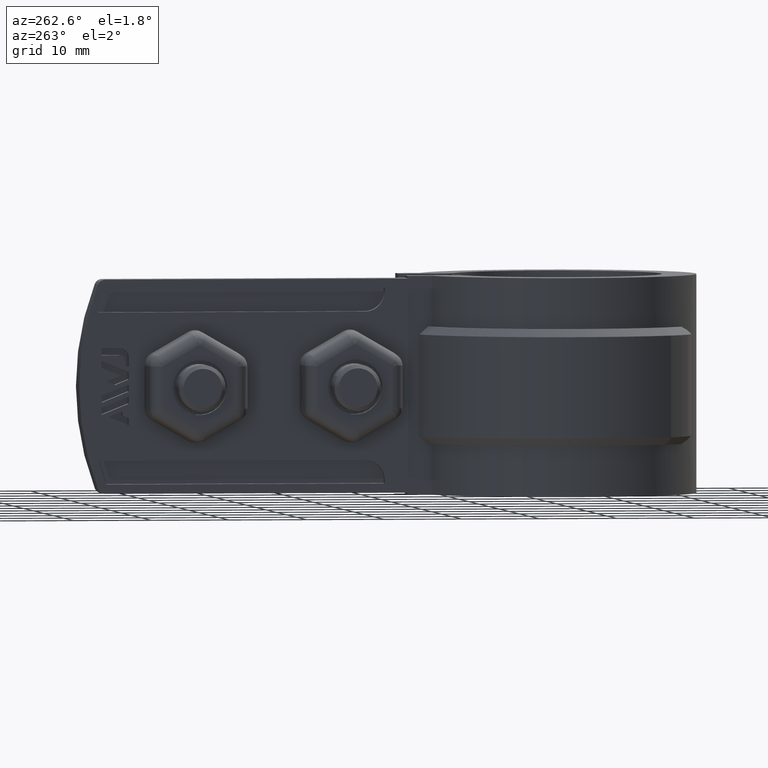
[diagram: clean part render]
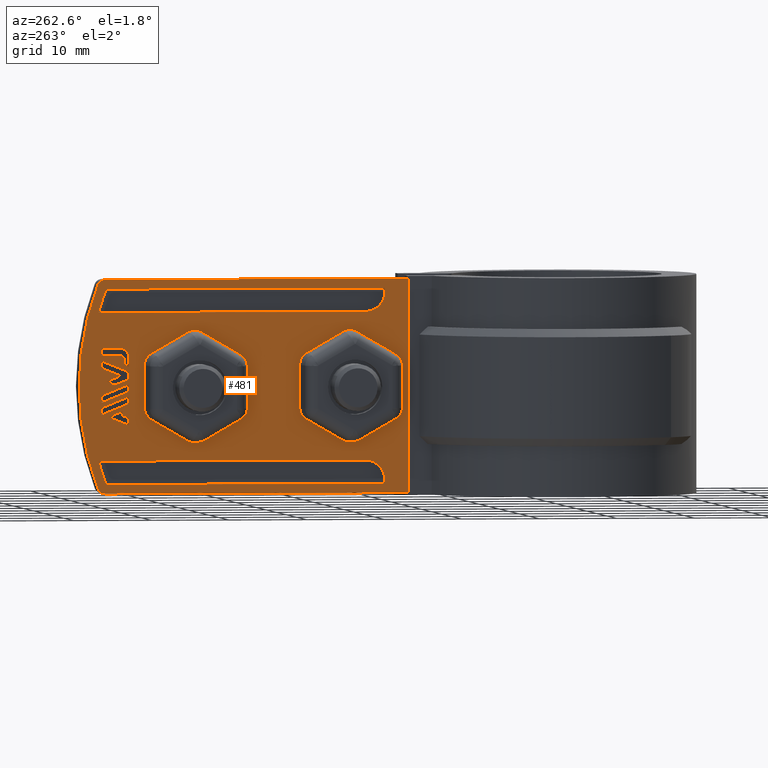
[diagram: same view with one face highlighted and labeled with its STEP entity id]
A machine part, auxiliary view. The second image highlights one B-rep face of the part: STEP entity #481.
In plain terms, the highlighted planar face has unit normal (-1, 0, -0).
Its self-contained STEP definition (entity closure, byte-faithful):
#481 = ADVANCED_FACE( '', ( #952, #953, #954, #955, #956, #957, #958, #959, #960, #961 ), #962, .T. );
#952 = FACE_BOUND( '', #2064, .T. );
#953 = FACE_BOUND( '', #2065, .T. );
#954 = FACE_BOUND( '', #2066, .T. );
#955 = FACE_BOUND( '', #2067, .T. );
#956 = FACE_BOUND( '', #2068, .T. );
#957 = FACE_OUTER_BOUND( '', #2069, .T. );
#958 = FACE_BOUND( '', #2070, .T. );
#959 = FACE_BOUND( '', #2071, .T. );
#960 = FACE_BOUND( '', #2072, .T. );
#961 = FACE_BOUND( '', #2073, .T. );
#962 = PLANE( '', #2074 );
#2064 = EDGE_LOOP( '', ( #4448, #4449, #4450, #4451, #4452 ) );
#2065 = EDGE_LOOP( '', ( #4453, #4454, #4455, #4456 ) );
#2066 = EDGE_LOOP( '', ( #4457, #4458, #4459, #4460, #4461 ) );
#2067 = EDGE_LOOP( '', ( #4462, #4463, #4464, #4465, #4466, #4467, #4468, #4469, #4470, #4471, #4472, #4473 ) );
#2068 = EDGE_LOOP( '', ( #4474, #4475, #4476, #4477, #4478, #4479, #4480, #4481, #4482, #4483, #4484, #4485 ) );
#2069 = EDGE_LOOP( '', ( #4486, #4487, #4488, #4489, #4490, #4491 ) );
#2070 = EDGE_LOOP( '', ( #4492, #4493, #4494, #4495, #4496 ) );
#2071 = EDGE_LOOP( '', ( #4497, #4498, #4499, #4500, #4501, #4502, #4503, #4504, #4505, #4506, #4507, #4508, #4509, #4510, #4511, #4512, #4513, #4514, #4515, #4516, #4517, #4518, #4519, #4520, #4521, #4522, #4523, #4524, #4525, #4526, #4527, #4528, #4529, #4530, #4531, #4532, #4533, #4534, #4535, #4536 ) );
#2072 = EDGE_LOOP( '', ( #4537, #4538, #4539, #4540, #4541, #4542, #4543 ) );
#2073 = EDGE_LOOP( '', ( #4544, #4545, #4546, #4547 ) );
#2074 = AXIS2_PLACEMENT_3D( '', #4548, #4549, #4550 );
#4448 = ORIENTED_EDGE( '', *, *, #6546, .T. );
#4449 = ORIENTED_EDGE( '', *, *, #6547, .T. );
#4450 = ORIENTED_EDGE( '', *, *, #6548, .T. );
#4451 = ORIENTED_EDGE( '', *, *, #6549, .T. );
#4452 = ORIENTED_EDGE( '', *, *, #6550, .T. );
#4453 = ORIENTED_EDGE( '', *, *, #6551, .T. );
#4454 = ORIENTED_EDGE( '', *, *, #6552, .T. );
#4455 = ORIENTED_EDGE( '', *, *, #6553, .T. );
#4456 = ORIENTED_EDGE( '', *, *, #6554, .T. );
#4457 = ORIENTED_EDGE( '', *, *, #6555, .T. );
#4458 = ORIENTED_EDGE( '', *, *, #6556, .F. );
#4459 = ORIENTED_EDGE( '', *, *, #6557, .T. );
#4460 = ORIENTED_EDGE( '', *, *, #6558, .T. );
#4461 = ORIENTED_EDGE( '', *, *, #6559, .T. );
#4462 = ORIENTED_EDGE( '', *, *, #6560, .F. );
#4463 = ORIENTED_EDGE( '', *, *, #6561, .F. );
#4464 = ORIENTED_EDGE( '', *, *, #6562, .F. );
#4465 = ORIENTED_EDGE( '', *, *, #6563, .F. );
#4466 = ORIENTED_EDGE( '', *, *, #6564, .F. );
#4467 = ORIENTED_EDGE( '', *, *, #6565, .F. );
#4468 = ORIENTED_EDGE( '', *, *, #6566, .F. );
#4469 = ORIENTED_EDGE( '', *, *, #6567, .F. );
#4470 = ORIENTED_EDGE( '', *, *, #6568, .F. );
#4471 = ORIENTED_EDGE( '', *, *, #6569, .F. );
#4472 = ORIENTED_EDGE( '', *, *, #6570, .F. );
#4473 = ORIENTED_EDGE( '', *, *, #6571, .F. );
#4474 = ORIENTED_EDGE( '', *, *, #6572, .F. );
#4475 = ORIENTED_EDGE( '', *, *, #6573, .F. );
#4476 = ORIENTED_EDGE( '', *, *, #6574, .F. );
#4477 = ORIENTED_EDGE( '', *, *, #6575, .F. );
#4478 = ORIENTED_EDGE( '', *, *, #6576, .F. );
#4479 = ORIENTED_EDGE( '', *, *, #6577, .F. );
#4480 = ORIENTED_EDGE( '', *, *, #6578, .F. );
#4481 = ORIENTED_EDGE( '', *, *, #6579, .F. );
#4482 = ORIENTED_EDGE( '', *, *, #6580, .F. );
#4483 = ORIENTED_EDGE( '', *, *, #6581, .F. );
#4484 = ORIENTED_EDGE( '', *, *, #6582, .F. );
#4485 = ORIENTED_EDGE( '', *, *, #6583, .F. );
#4486 = ORIENTED_EDGE( '', *, *, #6584, .T. );
#4487 = ORIENTED_EDGE( '', *, *, #6585, .T. );
#4488 = ORIENTED_EDGE( '', *, *, #6586, .T. );
#4489 = ORIENTED_EDGE( '', *, *, #6587, .T. );
#4490 = ORIENTED_EDGE( '', *, *, #6588, .T. );
#4491 = ORIENTED_EDGE( '', *, *, #6589, .T. );
#4492 = ORIENTED_EDGE( '', *, *, #6590, .T. );
#4493 = ORIENTED_EDGE( '', *, *, #6591, .T. );
#4494 = ORIENTED_EDGE( '', *, *, #6592, .T. );
#4495 = ORIENTED_EDGE( '', *, *, #6593, .T. );
#4496 = ORIENTED_EDGE( '', *, *, #6594, .F. );
#4497 = ORIENTED_EDGE( '', *, *, #6595, .T. );
#4498 = ORIENTED_EDGE( '', *, *, #6596, .T. );
#4499 = ORIENTED_EDGE( '', *, *, #6597, .T. );
#4500 = ORIENTED_EDGE( '', *, *, #6598, .T. );
#4501 = ORIENTED_EDGE( '', *, *, #6599, .T. );
#4502 = ORIENTED_EDGE( '', *, *, #6600, .T. );
#4503 = ORIENTED_EDGE( '', *, *, #6601, .T. );
#4504 = ORIENTED_EDGE( '', *, *, #6602, .T. );
#4505 = ORIENTED_EDGE( '', *, *, #6603, .T. );
#4506 = ORIENTED_EDGE( '', *, *, #6604, .T. );
#4507 = ORIENTED_EDGE( '', *, *, #6605, .T. );
#4508 = ORIENTED_EDGE( '', *, *, #6606, .T. );
#4509 = ORIENTED_EDGE( '', *, *, #6607, .T. );
#4510 = ORIENTED_EDGE( '', *, *, #6608, .T. );
#4511 = ORIENTED_EDGE( '', *, *, #6609, .T. );
#4512 = ORIENTED_EDGE( '', *, *, #6610, .T. );
#4513 = ORIENTED_EDGE( '', *, *, #6611, .T. );
#4514 = ORIENTED_EDGE( '', *, *, #6612, .T. );
#4515 = ORIENTED_EDGE( '', *, *, #6613, .T. );
#4516 = ORIENTED_EDGE( '', *, *, #6614, .T. );
#4517 = ORIENTED_EDGE( '', *, *, #6615, .T. );
#4518 = ORIENTED_EDGE( '', *, *, #6616, .T. );
#4519 = ORIENTED_EDGE( '', *, *, #6617, .T. );
#4520 = ORIENTED_EDGE( '', *, *, #6618, .T. );
#4521 = ORIENTED_EDGE( '', *, *, #6619, .T. );
#4522 = ORIENTED_EDGE( '', *, *, #6620, .T. );
#4523 = ORIENTED_EDGE( '', *, *, #6621, .T. );
#4524 = ORIENTED_EDGE( '', *, *, #6622, .T. );
#4525 = ORIENTED_EDGE( '', *, *, #6623, .T. );
#4526 = ORIENTED_EDGE( '', *, *, #6624, .T. );
#4527 = ORIENTED_EDGE( '', *, *, #6625, .T. );
#4528 = ORIENTED_EDGE( '', *, *, #6626, .T. );
#4529 = ORIENTED_EDGE( '', *, *, #6627, .T. );
#4530 = ORIENTED_EDGE( '', *, *, #6628, .T. );
#4531 = ORIENTED_EDGE( '', *, *, #6629, .T. );
#4532 = ORIENTED_EDGE( '', *, *, #6630, .T. );
#4533 = ORIENTED_EDGE( '', *, *, #6631, .T. );
#4534 = ORIENTED_EDGE( '', *, *, #6632, .T. );
#4535 = ORIENTED_EDGE( '', *, *, #6633, .T. );
#4536 = ORIENTED_EDGE( '', *, *, #6634, .T. );
#4537 = ORIENTED_EDGE( '', *, *, #6635, .T. );
#4538 = ORIENTED_EDGE( '', *, *, #6636, .T. );
#4539 = ORIENTED_EDGE( '', *, *, #6637, .T. );
#4540 = ORIENTED_EDGE( '', *, *, #6638, .T. );
#4541 = ORIENTED_EDGE( '', *, *, #6639, .T. );
#4542 = ORIENTED_EDGE( '', *, *, #6640, .T. );
#4543 = ORIENTED_EDGE( '', *, *, #6641, .T. );
#4544 = ORIENTED_EDGE( '', *, *, #6642, .T. );
#4545 = ORIENTED_EDGE( '', *, *, #6643, .T. );
#4546 = ORIENTED_EDGE( '', *, *, #6644, .T. );
#4547 = ORIENTED_EDGE( '', *, *, #6645, .T. );
#4548 = CARTESIAN_POINT( '', ( -6.69999999999978, 25.9942845476423, -12.4999999999974 ) );
#4549 = DIRECTION( '', ( -1.00000000000000, 6.81102793110733E-016, -3.55799675438450E-016 ) );
#4550 = DIRECTION( '', ( 6.81102793110733E-016, 1.00000000000000, 1.97370347594138E-018 ) );
#6546 = EDGE_CURVE( '', #7688, #7689, #7690, .T. );
#6547 = EDGE_CURVE( '', #7689, #7691, #7692, .T. );
#6548 = EDGE_CURVE( '', #7691, #7693, #7694, .T. );
#6549 = EDGE_CURVE( '', #7693, #7695, #7696, .T. );
#6550 = EDGE_CURVE( '', #7695, #7688, #7697, .T. );
#6551 = EDGE_CURVE( '', #7698, #7699, #7700, .T. );
#6552 = EDGE_CURVE( '', #7699, #7701, #7702, .T. );
#6553 = EDGE_CURVE( '', #7701, #7703, #7704, .T. );
#6554 = EDGE_CURVE( '', #7703, #7698, #7705, .T. );
#6555 = EDGE_CURVE( '', #7706, #7707, #7708, .F. );
#6556 = EDGE_CURVE( '', #7709, #7707, #7710, .T. );
#6557 = EDGE_CURVE( '', #7709, #7711, #7712, .T. );
#6558 = EDGE_CURVE( '', #7711, #7713, #7714, .T. );
#6559 = EDGE_CURVE( '', #7713, #7706, #7715, .T. );
#6560 = EDGE_CURVE( '', #7716, #7717, #7718, .F. );
#6561 = EDGE_CURVE( '', #7719, #7716, #7720, .T. );
#6562 = EDGE_CURVE( '', #7721, #7719, #7722, .F. );
#6563 = EDGE_CURVE( '', #7723, #7721, #7724, .T. );
#6564 = EDGE_CURVE( '', #7725, #7723, #7726, .F. );
#6565 = EDGE_CURVE( '', #7727, #7725, #7728, .T. );
#6566 = EDGE_CURVE( '', #7729, #7727, #7730, .F. );
#6567 = EDGE_CURVE( '', #7731, #7729, #7732, .T. );
#6568 = EDGE_CURVE( '', #7733, #7731, #7734, .F. );
#6569 = EDGE_CURVE( '', #7735, #7733, #7736, .T. );
#6570 = EDGE_CURVE( '', #7737, #7735, #7738, .F. );
#6571 = EDGE_CURVE( '', #7717, #7737, #7739, .T. );
#6572 = EDGE_CURVE( '', #7740, #7741, #7742, .F. );
#6573 = EDGE_CURVE( '', #7743, #7740, #7744, .T. );
#6574 = EDGE_CURVE( '', #7745, #7743, #7746, .F. );
#6575 = EDGE_CURVE( '', #7747, #7745, #7748, .T. );
#6576 = EDGE_CURVE( '', #7749, #7747, #7750, .F. );
#6577 = EDGE_CURVE( '', #7751, #7749, #7752, .T. );
#6578 = EDGE_CURVE( '', #7753, #7751, #7754, .F. );
#6579 = EDGE_CURVE( '', #7755, #7753, #7756, .T. );
#6580 = EDGE_CURVE( '', #7757, #7755, #7758, .F. );
#6581 = EDGE_CURVE( '', #7759, #7757, #7760, .T. );
#6582 = EDGE_CURVE( '', #7761, #7759, #7762, .F. );
#6583 = EDGE_CURVE( '', #7741, #7761, #7763, .T. );
#6584 = EDGE_CURVE( '', #7764, #7765, #7766, .T. );
#6585 = EDGE_CURVE( '', #7765, #7767, #7768, .T. );
#6586 = EDGE_CURVE( '', #7767, #7769, #7770, .T. );
#6587 = EDGE_CURVE( '', #7769, #7771, #7772, .T. );
#6588 = EDGE_CURVE( '', #7771, #7773, #7774, .T. );
#6589 = EDGE_CURVE( '', #7773, #7764, #7775, .T. );
#6590 = EDGE_CURVE( '', #7776, #7777, #7778, .F. );
#6591 = EDGE_CURVE( '', #7777, #7779, #7780, .T. );
#6592 = EDGE_CURVE( '', #7779, #7781, #7782, .T. );
#6593 = EDGE_CURVE( '', #7781, #7783, #7784, .T. );
#6594 = EDGE_CURVE( '', #7776, #7783, #7785, .T. );
#6595 = EDGE_CURVE( '', #7786, #7787, #7788, .T. );
#6596 = EDGE_CURVE( '', #7787, #7789, #7790, .T. );
#6597 = EDGE_CURVE( '', #7789, #7791, #7792, .T. );
#6598 = EDGE_CURVE( '', #7791, #7793, #7794, .T. );
#6599 = EDGE_CURVE( '', #7793, #7795, #7796, .T. );
#6600 = EDGE_CURVE( '', #7795, #7797, #7798, .T. );
#6601 = EDGE_CURVE( '', #7797, #7799, #7800, .T. );
#6602 = EDGE_CURVE( '', #7799, #7801, #7802, .T. );
#6603 = EDGE_CURVE( '', #7801, #7803, #7804, .T. );
#6604 = EDGE_CURVE( '', #7803, #7805, #7806, .T. );
#6605 = EDGE_CURVE( '', #7805, #7807, #7808, .T. );
#6606 = EDGE_CURVE( '', #7807, #7809, #7810, .T. );
#6607 = EDGE_CURVE( '', #7809, #7811, #7812, .T. );
#6608 = EDGE_CURVE( '', #7811, #7813, #7814, .T. );
#6609 = EDGE_CURVE( '', #7813, #7815, #7816, .T. );
#6610 = EDGE_CURVE( '', #7815, #7817, #7818, .T. );
#6611 = EDGE_CURVE( '', #7817, #7819, #7820, .T. );
#6612 = EDGE_CURVE( '', #7819, #7821, #7822, .T. );
#6613 = EDGE_CURVE( '', #7821, #7823, #7824, .T. );
#6614 = EDGE_CURVE( '', #7823, #7825, #7826, .T. );
#6615 = EDGE_CURVE( '', #7825, #7827, #7828, .T. );
#6616 = EDGE_CURVE( '', #7827, #7829, #7830, .T. );
#6617 = EDGE_CURVE( '', #7829, #7831, #7832, .T. );
#6618 = EDGE_CURVE( '', #7831, #7833, #7834, .T. );
#6619 = EDGE_CURVE( '', #7833, #7835, #7836, .T. );
#6620 = EDGE_CURVE( '', #7835, #7837, #7838, .T. );
#6621 = EDGE_CURVE( '', #7837, #7839, #7840, .T. );
#6622 = EDGE_CURVE( '', #7839, #7841, #7842, .T. );
#6623 = EDGE_CURVE( '', #7841, #7843, #7844, .T. );
#6624 = EDGE_CURVE( '', #7843, #7845, #7846, .T. );
#6625 = EDGE_CURVE( '', #7845, #7847, #7848, .T. );
#6626 = EDGE_CURVE( '', #7847, #7849, #7850, .T. );
#6627 = EDGE_CURVE( '', #7849, #7851, #7852, .T. );
#6628 = EDGE_CURVE( '', #7851, #7853, #7854, .T. );
#6629 = EDGE_CURVE( '', #7853, #7855, #7856, .T. );
#6630 = EDGE_CURVE( '', #7855, #7857, #7858, .T. );
#6631 = EDGE_CURVE( '', #7857, #7859, #7860, .T. );
#6632 = EDGE_CURVE( '', #7859, #7861, #7862, .T. );
#6633 = EDGE_CURVE( '', #7861, #7863, #7864, .T. );
#6634 = EDGE_CURVE( '', #7863, #7786, #7865, .F. );
#6635 = EDGE_CURVE( '', #7866, #7867, #7868, .T. );
#6636 = EDGE_CURVE( '', #7867, #7869, #7870, .T. );
#6637 = EDGE_CURVE( '', #7869, #7871, #7872, .T. );
#6638 = EDGE_CURVE( '', #7871, #7873, #7874, .T. );
#6639 = EDGE_CURVE( '', #7873, #7875, #7876, .T. );
#6640 = EDGE_CURVE( '', #7875, #7877, #7878, .T. );
#6641 = EDGE_CURVE( '', #7877, #7866, #7879, .T. );
#6642 = EDGE_CURVE( '', #7880, #7881, #7882, .T. );
#6643 = EDGE_CURVE( '', #7881, #7883, #7884, .T. );
#6644 = EDGE_CURVE( '', #7883, #7885, #7886, .T. );
#6645 = EDGE_CURVE( '', #7885, #7880, #7887, .T. );
#7688 = VERTEX_POINT( '', #10714 );
#7689 = VERTEX_POINT( '', #10715 );
#7690 = LINE( '', #10716, #10717 );
#7691 = VERTEX_POINT( '', #10718 );
#7692 = LINE( '', #10719, #10720 );
#7693 = VERTEX_POINT( '', #10721 );
#7694 = LINE( '', #10722, #10723 );
#7695 = VERTEX_POINT( '', #10724 );
#7696 = LINE( '', #10725, #10726 );
#7697 = LINE( '', #10727, #10728 );
#7698 = VERTEX_POINT( '', #10729 );
#7699 = VERTEX_POINT( '', #10730 );
#7700 = LINE( '', #10731, #10732 );
#7701 = VERTEX_POINT( '', #10733 );
#7702 = LINE( '', #10734, #10735 );
#7703 = VERTEX_POINT( '', #10736 );
#7704 = LINE( '', #10737, #10738 );
#7705 = LINE( '', #10739, #10740 );
#7706 = VERTEX_POINT( '', #10741 );
#7707 = VERTEX_POINT( '', #10742 );
#7708 = CIRCLE( '', #10743, 35.2000000000000 );
#7709 = VERTEX_POINT( '', #10744 );
#7710 = LINE( '', #10745, #10746 );
#7711 = VERTEX_POINT( '', #10747 );
#7712 = LINE( '', #10748, #10749 );
#7713 = VERTEX_POINT( '', #10750 );
#7714 = CIRCLE( '', #10751, 2.50000000000000 );
#7715 = LINE( '', #10752, #10753 );
#7716 = VERTEX_POINT( '', #10754 );
#7717 = VERTEX_POINT( '', #10755 );
#7718 = LINE( '', #10756, #10757 );
#7719 = VERTEX_POINT( '', #10758 );
#7720 = CIRCLE( '', #10759, 1.77252045227181 );
#7721 = VERTEX_POINT( '', #10760 );
#7722 = LINE( '', #10761, #10762 );
#7723 = VERTEX_POINT( '', #10763 );
#7724 = CIRCLE( '', #10764, 1.77252045227181 );
#7725 = VERTEX_POINT( '', #10765 );
#7726 = LINE( '', #10766, #10767 );
#7727 = VERTEX_POINT( '', #10768 );
#7728 = CIRCLE( '', #10769, 1.77252045227182 );
#7729 = VERTEX_POINT( '', #10770 );
#7730 = LINE( '', #10771, #10772 );
#7731 = VERTEX_POINT( '', #10773 );
#7732 = CIRCLE( '', #10774, 1.77252045227182 );
#7733 = VERTEX_POINT( '', #10775 );
#7734 = LINE( '', #10776, #10777 );
#7735 = VERTEX_POINT( '', #10778 );
#7736 = CIRCLE( '', #10779, 1.77252045227181 );
#7737 = VERTEX_POINT( '', #10780 );
#7738 = LINE( '', #10781, #10782 );
#7739 = CIRCLE( '', #10783, 1.77252045227182 );
#7740 = VERTEX_POINT( '', #10784 );
#7741 = VERTEX_POINT( '', #10785 );
#7742 = LINE( '', #10786, #10787 );
#7743 = VERTEX_POINT( '', #10788 );
#7744 = CIRCLE( '', #10789, 1.77252045227107 );
#7745 = VERTEX_POINT( '', #10790 );
#7746 = LINE( '', #10791, #10792 );
#7747 = VERTEX_POINT( '', #10793 );
#7748 = CIRCLE( '', #10794, 1.77252045227107 );
#7749 = VERTEX_POINT( '', #10795 );
#7750 = LINE( '', #10796, #10797 );
#7751 = VERTEX_POINT( '', #10798 );
#7752 = CIRCLE( '', #10799, 1.77252045227107 );
#7753 = VERTEX_POINT( '', #10800 );
#7754 = LINE( '', #10801, #10802 );
#7755 = VERTEX_POINT( '', #10803 );
#7756 = CIRCLE( '', #10804, 1.77252045227108 );
#7757 = VERTEX_POINT( '', #10805 );
#7758 = LINE( '', #10806, #10807 );
#7759 = VERTEX_POINT( '', #10808 );
#7760 = CIRCLE( '', #10809, 1.77252045227107 );
#7761 = VERTEX_POINT( '', #10810 );
#7762 = LINE( '', #10811, #10812 );
#7763 = CIRCLE( '', #10813, 1.77252045227108 );
#7764 = VERTEX_POINT( '', #10814 );
#7765 = VERTEX_POINT( '', #10815 );
#7766 = CIRCLE( '', #10816, 36.3999999999848 );
#7767 = VERTEX_POINT( '', #10817 );
#7768 = CIRCLE( '', #10818, 1.00000000000000 );
#7769 = VERTEX_POINT( '', #10819 );
#7770 = LINE( '', #10820, #10821 );
#7771 = VERTEX_POINT( '', #10822 );
#7772 = LINE( '', #10823, #10824 );
#7773 = VERTEX_POINT( '', #10825 );
#7774 = LINE( '', #10826, #10827 );
#7775 = CIRCLE( '', #10828, 1.00000000000000 );
#7776 = VERTEX_POINT( '', #10829 );
#7777 = VERTEX_POINT( '', #10830 );
#7778 = CIRCLE( '', #10831, 35.2000000000000 );
#7779 = VERTEX_POINT( '', #10832 );
#7780 = LINE( '', #10833, #10834 );
#7781 = VERTEX_POINT( '', #10835 );
#7782 = CIRCLE( '', #10836, 2.49999999999896 );
#7783 = VERTEX_POINT( '', #10837 );
#7784 = LINE( '', #10838, #10839 );
#7785 = LINE( '', #10840, #10841 );
#7786 = VERTEX_POINT( '', #10842 );
#7787 = VERTEX_POINT( '', #10843 );
#7788 = LINE( '', #10844, #10845 );
#7789 = VERTEX_POINT( '', #10846 );
#7790 = LINE( '', #10847, #10848 );
#7791 = VERTEX_POINT( '', #10849 );
#7792 = LINE( '', #10850, #10851 );
#7793 = VERTEX_POINT( '', #10852 );
#7794 = LINE( '', #10853, #10854 );
#7795 = VERTEX_POINT( '', #10855 );
#7796 = LINE( '', #10856, #10857 );
#7797 = VERTEX_POINT( '', #10858 );
#7798 = LINE( '', #10859, #10860 );
#7799 = VERTEX_POINT( '', #10861 );
#7800 = LINE( '', #10862, #10863 );
#7801 = VERTEX_POINT( '', #10864 );
#7802 = LINE( '', #10865, #10866 );
#7803 = VERTEX_POINT( '', #10867 );
#7804 = LINE( '', #10868, #10869 );
#7805 = VERTEX_POINT( '', #10870 );
#7806 = LINE( '', #10871, #10872 );
#7807 = VERTEX_POINT( '', #10873 );
#7808 = LINE( '', #10874, #10875 );
#7809 = VERTEX_POINT( '', #10876 );
#7810 = LINE( '', #10877, #10878 );
#7811 = VERTEX_POINT( '', #10879 );
#7812 = LINE( '', #10880, #10881 );
#7813 = VERTEX_POINT( '', #10882 );
#7814 = LINE( '', #10883, #10884 );
#7815 = VERTEX_POINT( '', #10885 );
#7816 = LINE( '', #10886, #10887 );
#7817 = VERTEX_POINT( '', #10888 );
#7818 = LINE( '', #10889, #10890 );
#7819 = VERTEX_POINT( '', #10891 );
#7820 = LINE( '', #10892, #10893 );
#7821 = VERTEX_POINT( '', #10894 );
#7822 = LINE( '', #10895, #10896 );
#7823 = VERTEX_POINT( '', #10897 );
#7824 = LINE( '', #10898, #10899 );
#7825 = VERTEX_POINT( '', #10900 );
#7826 = LINE( '', #10901, #10902 );
#7827 = VERTEX_POINT( '', #10903 );
#7828 = LINE( '', #10904, #10905 );
#7829 = VERTEX_POINT( '', #10906 );
#7830 = LINE( '', #10907, #10908 );
#7831 = VERTEX_POINT( '', #10909 );
#7832 = LINE( '', #10910, #10911 );
#7833 = VERTEX_POINT( '', #10912 );
#7834 = LINE( '', #10913, #10914 );
#7835 = VERTEX_POINT( '', #10915 );
#7836 = LINE( '', #10916, #10917 );
#7837 = VERTEX_POINT( '', #10918 );
#7838 = LINE( '', #10919, #10920 );
#7839 = VERTEX_POINT( '', #10921 );
#7840 = LINE( '', #10922, #10923 );
#7841 = VERTEX_POINT( '', #10924 );
#7842 = LINE( '', #10925, #10926 );
#7843 = VERTEX_POINT( '', #10927 );
#7844 = LINE( '', #10928, #10929 );
#7845 = VERTEX_POINT( '', #10930 );
#7846 = LINE( '', #10931, #10932 );
#7847 = VERTEX_POINT( '', #10933 );
#7848 = LINE( '', #10934, #10935 );
#7849 = VERTEX_POINT( '', #10936 );
#7850 = LINE( '', #10937, #10938 );
#7851 = VERTEX_POINT( '', #10939 );
#7852 = LINE( '', #10940, #10941 );
#7853 = VERTEX_POINT( '', #10942 );
#7854 = LINE( '', #10943, #10944 );
#7855 = VERTEX_POINT( '', #10945 );
#7856 = LINE( '', #10946, #10947 );
#7857 = VERTEX_POINT( '', #10948 );
#7858 = LINE( '', #10949, #10950 );
#7859 = VERTEX_POINT( '', #10951 );
#7860 = LINE( '', #10952, #10953 );
#7861 = VERTEX_POINT( '', #10954 );
#7862 = LINE( '', #10955, #10956 );
#7863 = VERTEX_POINT( '', #10957 );
#7864 = LINE( '', #10958, #10959 );
#7865 = CIRCLE( '', #10960, 1.16712912069193 );
#7866 = VERTEX_POINT( '', #10961 );
#7867 = VERTEX_POINT( '', #10962 );
#7868 = LINE( '', #10963, #10964 );
#7869 = VERTEX_POINT( '', #10965 );
#7870 = LINE( '', #10966, #10967 );
#7871 = VERTEX_POINT( '', #10968 );
#7872 = LINE( '', #10969, #10970 );
#7873 = VERTEX_POINT( '', #10971 );
#7874 = LINE( '', #10972, #10973 );
#7875 = VERTEX_POINT( '', #10974 );
#7876 = LINE( '', #10975, #10976 );
#7877 = VERTEX_POINT( '', #10977 );
#7878 = LINE( '', #10978, #10979 );
#7879 = LINE( '', #10980, #10981 );
#7880 = VERTEX_POINT( '', #10982 );
#7881 = VERTEX_POINT( '', #10983 );
#7882 = LINE( '', #10984, #10985 );
#7883 = VERTEX_POINT( '', #10986 );
#7884 = LINE( '', #10987, #10988 );
#7885 = VERTEX_POINT( '', #10989 );
#7886 = LINE( '', #10990, #10991 );
#7887 = LINE( '', #10992, #10993 );
#10714 = CARTESIAN_POINT( '', ( -6.69999999999976, 56.8059825644170, -15.6427309999961 ) );
#10715 = CARTESIAN_POINT( '', ( -6.69999999999976, 56.8059825644170, -16.2049013519959 ) );
#10716 = CARTESIAN_POINT( '', ( -6.69999999999976, 56.8059825644170, -12.4999999999974 ) );
#10717 = VECTOR( '', #12590, 999.999999999756 );
#10718 = CARTESIAN_POINT( '', ( -6.69999999999976, 55.9979766604169, -16.5315944439957 ) );
#10719 = CARTESIAN_POINT( '', ( -6.69999999999977, 31.6109964322712, -26.3917426630022 ) );
#10720 = VECTOR( '', #12591, 1000.00000000012 );
#10721 = CARTESIAN_POINT( '', ( -6.69999999999976, 55.9979766604169, -17.4353519199953 ) );
#10722 = CARTESIAN_POINT( '', ( -6.69999999999976, 55.9979766604169, -12.4999999999974 ) );
#10723 = VECTOR( '', #12592, 999.999999999756 );
#10724 = CARTESIAN_POINT( '', ( -6.69999999999976, 58.6210137744169, -16.3757128079958 ) );
#10725 = CARTESIAN_POINT( '', ( -6.69999999999977, 31.9178048184121, -27.1631181690011 ) );
#10726 = VECTOR( '', #12593, 1000.00000000012 );
#10727 = CARTESIAN_POINT( '', ( -6.69999999999978, 29.2234632051169, -4.50381239750777 ) );
#10728 = VECTOR( '', #12594, 1000.00000000012 );
#10729 = CARTESIAN_POINT( '', ( -6.69999999999976, 59.4964154844169, -14.5449628859965 ) );
#10730 = CARTESIAN_POINT( '', ( -6.69999999999976, 59.4964154844169, -13.6409432239969 ) );
#10731 = CARTESIAN_POINT( '', ( -6.69999999999976, 59.4964154844169, -12.4999999999974 ) );
#10732 = VECTOR( '', #12595, 999.999999999756 );
#10733 = CARTESIAN_POINT( '', ( -6.69999999999976, 55.9979766604169, -12.2273304499975 ) );
#10734 = CARTESIAN_POINT( '', ( -6.69999999999978, 30.3001962268503, -1.84363860576305 ) );
#10735 = VECTOR( '', #12596, 1000.00000000012 );
#10736 = CARTESIAN_POINT( '', ( -6.69999999999976, 55.9979766604169, -13.1313508899971 ) );
#10737 = CARTESIAN_POINT( '', ( -6.69999999999976, 55.9979766604169, -12.4999999999974 ) );
#10738 = VECTOR( '', #12597, 999.999999999756 );
#10739 = CARTESIAN_POINT( '', ( -6.69999999999978, 29.9861753996757, -2.62077856056763 ) );
#10740 = VECTOR( '', #12598, 1000.00000000012 );
#10741 = CARTESIAN_POINT( '', ( -6.69999999999976, 59.8880892912824, -3.00000000000138 ) );
#10742 = CARTESIAN_POINT( '', ( -6.69999999999977, 58.9000591168573, -2.63118725493017E-012 ) );
#10743 = AXIS2_PLACEMENT_3D( '', #12599, #12600, #12601 );
#10744 = CARTESIAN_POINT( '', ( -6.69999999999979, 22.9942845476423, -2.62086350953010E-012 ) );
#10745 = CARTESIAN_POINT( '', ( -6.69999999999979, 19.9942845476423, -2.61875278474071E-012 ) );
#10746 = VECTOR( '', #12602, 1000.00000000017 );
#10747 = CARTESIAN_POINT( '', ( -6.69999999999979, 22.9942845476423, -0.500000000002411 ) );
#10748 = CARTESIAN_POINT( '', ( -6.69999999999979, 22.9942845476423, 1.19999999999687 ) );
#10749 = VECTOR( '', #12603, 999.999999999756 );
#10750 = CARTESIAN_POINT( '', ( -6.69999999999979, 25.4942845476423, -3.00000000000137 ) );
#10751 = AXIS2_PLACEMENT_3D( '', #12604, #12605, #12606 );
#10752 = CARTESIAN_POINT( '', ( -6.69999999999979, 25.4942845476423, -3.00000000000137 ) );
#10753 = VECTOR( '', #12607, 1000.00000000017 );
#10754 = CARTESIAN_POINT( '', ( -6.69999999999977, 53.9668049999140, -9.78645373480729 ) );
#10755 = CARTESIAN_POINT( '', ( -6.69999999999976, 53.9668049999140, -15.2135462651875 ) );
#10756 = CARTESIAN_POINT( '', ( -6.69999999999976, 53.9668049999140, -15.2135462651875 ) );
#10757 = VECTOR( '', #12608, 999.999999999756 );
#10758 = CARTESIAN_POINT( '', ( -6.69999999999977, 53.0805447737781, -8.25140599441306 ) );
#10759 = AXIS2_PLACEMENT_3D( '', #12609, #12610, #12611 );
#10760 = CARTESIAN_POINT( '', ( -6.69999999999977, 48.3805447737781, -5.53785972922296 ) );
#10761 = CARTESIAN_POINT( '', ( -6.69999999999976, 55.4305447737781, -9.60817912700811 ) );
#10762 = VECTOR( '', #12612, 1000.00000000007 );
#10763 = CARTESIAN_POINT( '', ( -6.69999999999977, 46.6080243215063, -5.53785972922295 ) );
#10764 = AXIS2_PLACEMENT_3D( '', #12613, #12614, #12615 );
#10765 = CARTESIAN_POINT( '', ( -6.69999999999977, 41.9080243215063, -8.25140599441306 ) );
#10766 = CARTESIAN_POINT( '', ( -6.69999999999977, 46.6080243215063, -5.53785972922295 ) );
#10767 = VECTOR( '', #12616, 1000.00000000007 );
#10768 = CARTESIAN_POINT( '', ( -6.69999999999977, 41.0217640953704, -9.78645373480729 ) );
#10769 = AXIS2_PLACEMENT_3D( '', #12617, #12618, #12619 );
#10770 = CARTESIAN_POINT( '', ( -6.69999999999977, 41.0217640953704, -15.2135462651875 ) );
#10771 = CARTESIAN_POINT( '', ( -6.69999999999977, 41.0217640953704, -15.2135462651875 ) );
#10772 = VECTOR( '', #12620, 999.999999999756 );
#10773 = CARTESIAN_POINT( '', ( -6.69999999999977, 41.9080243215063, -16.7485940055817 ) );
#10774 = AXIS2_PLACEMENT_3D( '', #12621, #12622, #12623 );
#10775 = CARTESIAN_POINT( '', ( -6.69999999999977, 46.6080243215063, -19.4621402707719 ) );
#10776 = CARTESIAN_POINT( '', ( -6.69999999999976, 48.9580243215063, -20.8189134033669 ) );
#10777 = VECTOR( '', #12624, 1000.00000000007 );
#10778 = CARTESIAN_POINT( '', ( -6.69999999999977, 48.3805447737781, -19.4621402707719 ) );
#10779 = AXIS2_PLACEMENT_3D( '', #12625, #12626, #12627 );
#10780 = CARTESIAN_POINT( '', ( -6.69999999999976, 53.0805447737781, -16.7485940055818 ) );
#10781 = CARTESIAN_POINT( '', ( -6.69999999999976, 53.0805447737781, -16.7485940055818 ) );
#10782 = VECTOR( '', #12628, 1000.00000000007 );
#10783 = AXIS2_PLACEMENT_3D( '', #12629, #12630, #12631 );
#10784 = CARTESIAN_POINT( '', ( -6.69999999999978, 33.9668049999140, -9.78645373480729 ) );
#10785 = CARTESIAN_POINT( '', ( -6.69999999999978, 33.9668049999140, -15.2135462651875 ) );
#10786 = CARTESIAN_POINT( '', ( -6.69999999999977, 33.9668049999140, -15.2135462651875 ) );
#10787 = VECTOR( '', #12632, 999.999999999756 );
#10788 = CARTESIAN_POINT( '', ( -6.69999999999978, 33.0805447737781, -8.25140599441306 ) );
#10789 = AXIS2_PLACEMENT_3D( '', #12633, #12634, #12635 );
#10790 = CARTESIAN_POINT( '', ( -6.69999999999978, 28.3805447737781, -5.53785972922295 ) );
#10791 = CARTESIAN_POINT( '', ( -6.69999999999978, 35.4305447737781, -9.60817912700811 ) );
#10792 = VECTOR( '', #12636, 1000.00000000007 );
#10793 = CARTESIAN_POINT( '', ( -6.69999999999978, 26.6080243215063, -5.53785972922295 ) );
#10794 = AXIS2_PLACEMENT_3D( '', #12637, #12638, #12639 );
#10795 = CARTESIAN_POINT( '', ( -6.69999999999979, 21.9080243215063, -8.25140599441306 ) );
#10796 = CARTESIAN_POINT( '', ( -6.69999999999978, 26.6080243215063, -5.53785972922295 ) );
#10797 = VECTOR( '', #12640, 1000.00000000007 );
#10798 = CARTESIAN_POINT( '', ( -6.69999999999979, 21.0217640953704, -9.78645373480729 ) );
#10799 = AXIS2_PLACEMENT_3D( '', #12641, #12642, #12643 );
#10800 = CARTESIAN_POINT( '', ( -6.69999999999978, 21.0217640953704, -15.2135462651875 ) );
#10801 = CARTESIAN_POINT( '', ( -6.69999999999978, 21.0217640953704, -15.2135462651875 ) );
#10802 = VECTOR( '', #12644, 999.999999999756 );
#10803 = CARTESIAN_POINT( '', ( -6.69999999999978, 21.9080243215063, -16.7485940055817 ) );
#10804 = AXIS2_PLACEMENT_3D( '', #12645, #12646, #12647 );
#10805 = CARTESIAN_POINT( '', ( -6.69999999999978, 26.6080243215063, -19.4621402707719 ) );
#10806 = CARTESIAN_POINT( '', ( -6.69999999999978, 28.9580243215063, -20.8189134033669 ) );
#10807 = VECTOR( '', #12648, 1000.00000000007 );
#10808 = CARTESIAN_POINT( '', ( -6.69999999999978, 28.3805447737781, -19.4621402707719 ) );
#10809 = AXIS2_PLACEMENT_3D( '', #12649, #12650, #12651 );
#10810 = CARTESIAN_POINT( '', ( -6.69999999999978, 33.0805447737781, -16.7485940055818 ) );
#10811 = CARTESIAN_POINT( '', ( -6.69999999999977, 33.0805447737781, -16.7485940055818 ) );
#10812 = VECTOR( '', #12652, 1000.00000000007 );
#10813 = AXIS2_PLACEMENT_3D( '', #12653, #12654, #12655 );
#10814 = CARTESIAN_POINT( '', ( -6.69999999999976, 59.9711717504428, 0.558757062144028 ) );
#10815 = CARTESIAN_POINT( '', ( -6.69999999999976, 59.9711717504428, -25.5587570621389 ) );
#10816 = AXIS2_PLACEMENT_3D( '', #12656, #12657, #12658 );
#10817 = CARTESIAN_POINT( '', ( -6.69999999999976, 59.0377407833329, -26.1999999999917 ) );
#10818 = AXIS2_PLACEMENT_3D( '', #12659, #12660, #12661 );
#10819 = CARTESIAN_POINT( '', ( -6.69999999999978, 19.9942845476423, -26.1999999999917 ) );
#10820 = CARTESIAN_POINT( '', ( -6.69999999999978, 22.9942845476423, -26.1999999999917 ) );
#10821 = VECTOR( '', #12662, 1000.00000000017 );
#10822 = CARTESIAN_POINT( '', ( -6.69999999999979, 19.9942845476423, 1.19999999999687 ) );
#10823 = CARTESIAN_POINT( '', ( -6.69999999999978, 19.9942845476423, -26.1999999999917 ) );
#10824 = VECTOR( '', #12663, 999.999999999756 );
#10825 = CARTESIAN_POINT( '', ( -6.69999999999976, 59.0377407833329, 1.19999999999687 ) );
#10826 = CARTESIAN_POINT( '', ( -6.69999999999979, 19.9942845476423, 1.19999999999687 ) );
#10827 = VECTOR( '', #12664, 1000.00000000017 );
#10828 = AXIS2_PLACEMENT_3D( '', #12665, #12666, #12667 );
#10829 = CARTESIAN_POINT( '', ( -6.69999999999976, 58.9000591168573, -24.9999999999922 ) );
#10830 = CARTESIAN_POINT( '', ( -6.69999999999976, 59.8880892912824, -21.9999999999934 ) );
#10831 = AXIS2_PLACEMENT_3D( '', #12668, #12669, #12670 );
#10832 = CARTESIAN_POINT( '', ( -6.69999999999978, 25.4942845476423, -21.9999999999934 ) );
#10833 = CARTESIAN_POINT( '', ( -6.69999999999976, 60.7181956176816, -21.9999999999934 ) );
#10834 = VECTOR( '', #12671, 1000.00000000017 );
#10835 = CARTESIAN_POINT( '', ( -6.69999999999978, 22.9942845476423, -24.4999999999924 ) );
#10836 = AXIS2_PLACEMENT_3D( '', #12672, #12673, #12674 );
#10837 = CARTESIAN_POINT( '', ( -6.69999999999978, 22.9942845476423, -24.9999999999922 ) );
#10838 = CARTESIAN_POINT( '', ( -6.69999999999978, 22.9942845476423, -24.4999999999924 ) );
#10839 = VECTOR( '', #12675, 999.999999999756 );
#10840 = CARTESIAN_POINT( '', ( -6.69999999999976, 58.6860266241973, -24.9999999999922 ) );
#10841 = VECTOR( '', #12676, 1000.00000000017 );
#10842 = CARTESIAN_POINT( '', ( -6.69999999999976, 55.9979766675555, -8.74297971174762 ) );
#10843 = CARTESIAN_POINT( '', ( -6.69999999999976, 55.9979766604169, -9.97073444799846 ) );
#10844 = CARTESIAN_POINT( '', ( -6.69999999999976, 55.9979766457109, -12.5000001744489 ) );
#10845 = VECTOR( '', #12677, 999.999999999756 );
#10846 = CARTESIAN_POINT( '', ( -6.69999999999976, 56.5067163064169, -9.76519073799855 ) );
#10847 = CARTESIAN_POINT( '', ( -6.69999999999978, 29.3262034772128, -20.7468067581793 ) );
#10848 = VECTOR( '', #12678, 1000.00000000012 );
#10849 = CARTESIAN_POINT( '', ( -6.69999999999976, 56.5067163064169, -9.26826424399876 ) );
#10850 = CARTESIAN_POINT( '', ( -6.69999999999976, 56.5067163064169, -12.4999999999974 ) );
#10851 = VECTOR( '', #12679, 999.999999999756 );
#10852 = CARTESIAN_POINT( '', ( -6.69999999999976, 56.5074133944169, -9.23547076599877 ) );
#10853 = CARTESIAN_POINT( '', ( -6.69999999999976, 56.4242696136374, -13.1468474441654 ) );
#10854 = VECTOR( '', #12680, 999.999999999757 );
#10855 = CARTESIAN_POINT( '', ( -6.69999999999976, 56.5094968784169, -9.20269440399879 ) );
#10856 = CARTESIAN_POINT( '', ( -6.69999999999976, 56.1779344582279, -14.4186739410052 ) );
#10857 = VECTOR( '', #12681, 999.999999999758 );
#10858 = CARTESIAN_POINT( '', ( -6.69999999999976, 56.5129558664169, -9.17002851799880 ) );
#10859 = CARTESIAN_POINT( '', ( -6.69999999999976, 55.8258537737374, -15.6588624283415 ) );
#10860 = VECTOR( '', #12682, 999.999999999761 );
#10861 = CARTESIAN_POINT( '', ( -6.69999999999976, 56.5177786884169, -9.13756568999881 ) );
#10862 = CARTESIAN_POINT( '', ( -6.69999999999976, 55.3698801565807, -16.8641690356026 ) );
#10863 = VECTOR( '', #12683, 999.999999999766 );
#10864 = CARTESIAN_POINT( '', ( -6.69999999999976, 56.5239536744169, -9.10540005799881 ) );
#10865 = CARTESIAN_POINT( '', ( -6.69999999999976, 54.8102839982431, -18.0319414579899 ) );
#10866 = VECTOR( '', #12684, 999.999999999771 );
#10867 = CARTESIAN_POINT( '', ( -6.69999999999976, 56.5328555504169, -9.06837192599884 ) );
#10868 = CARTESIAN_POINT( '', ( -6.69999999999976, 54.0843626676891, -19.2530922773761 ) );
#10869 = VECTOR( '', #12685, 999.999999999780 );
#10870 = CARTESIAN_POINT( '', ( -6.69999999999976, 56.5435981744169, -9.03175224399885 ) );
#10871 = CARTESIAN_POINT( '', ( -6.69999999999976, 53.1860905334043, -20.4768947088561 ) );
#10872 = VECTOR( '', #12686, 999.999999999790 );
#10873 = CARTESIAN_POINT( '', ( -6.69999999999976, 56.5561247524169, -8.99566860399887 ) );
#10874 = CARTESIAN_POINT( '', ( -6.69999999999976, 52.1833807747762, -21.5916480886787 ) );
#10875 = VECTOR( '', #12687, 999.999999999801 );
#10876 = CARTESIAN_POINT( '', ( -6.69999999999976, 56.5703777124170, -8.96024704199888 ) );
#10877 = CARTESIAN_POINT( '', ( -6.69999999999976, 51.0837961533703, -22.5955402626163 ) );
#10878 = VECTOR( '', #12688, 999.999999999815 );
#10879 = CARTESIAN_POINT( '', ( -6.69999999999976, 56.5862994824169, -8.92561592799889 ) );
#10880 = CARTESIAN_POINT( '', ( -6.69999999999976, 49.8916943203338, -23.4869137330171 ) );
#10881 = VECTOR( '', #12689, 999.999999999829 );
#10882 = CARTESIAN_POINT( '', ( -6.69999999999976, 56.6038324904169, -8.89190129799892 ) );
#10883 = CARTESIAN_POINT( '', ( -6.69999999999976, 48.6109483600737, -24.2616046077419 ) );
#10884 = VECTOR( '', #12690, 999.999999999845 );
#10885 = CARTESIAN_POINT( '', ( -6.69999999999976, 56.6229183864169, -8.85923152199893 ) );
#10886 = CARTESIAN_POINT( '', ( -6.69999999999976, 47.2436184393226, -24.9139993101182 ) );
#10887 = VECTOR( '', #12691, 999.999999999863 );
#10888 = CARTESIAN_POINT( '', ( -6.69999999999976, 56.6436870964170, -8.82742610399893 ) );
#10889 = CARTESIAN_POINT( '', ( -6.69999999999976, 45.8002613083123, -25.4331608724302 ) );
#10890 = VECTOR( '', #12692, 999.999999999881 );
#10891 = CARTESIAN_POINT( '', ( -6.69999999999976, 56.6660374804169, -8.79662508399895 ) );
#10892 = CARTESIAN_POINT( '', ( -6.69999999999976, 44.3261050031297, -25.8022616328587 ) );
#10893 = VECTOR( '', #12693, 999.999999999900 );
#10894 = CARTESIAN_POINT( '', ( -6.69999999999976, 56.6898808464169, -8.76692337799897 ) );
#10895 = CARTESIAN_POINT( '', ( -6.69999999999977, 42.8383665928460, -26.0217691918944 ) );
#10896 = VECTOR( '', #12694, 999.999999999920 );
#10897 = CARTESIAN_POINT( '', ( -6.69999999999976, 56.7151285024169, -8.73841356799898 ) );
#10898 = CARTESIAN_POINT( '', ( -6.69999999999977, 41.3451015994739, -26.0943434292741 ) );
#10899 = VECTOR( '', #12695, 999.999999999940 );
#10900 = CARTESIAN_POINT( '', ( -6.69999999999976, 56.7416925344169, -8.71119056999899 ) );
#10901 = CARTESIAN_POINT( '', ( -6.69999999999977, 39.8507944499394, -26.0210961133940 ) );
#10902 = VECTOR( '', #12696, 999.999999999960 );
#10903 = CARTESIAN_POINT( '', ( -6.69999999999976, 56.7694826944170, -8.68534852199900 ) );
#10904 = CARTESIAN_POINT( '', ( -6.69999999999977, 38.3631929280008, -25.8013429475595 ) );
#10905 = VECTOR( '', #12697, 999.999999999980 );
#10906 = CARTESIAN_POINT( '', ( -6.69999999999976, 56.7984118464170, -8.66098078399901 ) );
#10907 = CARTESIAN_POINT( '', ( -6.69999999999977, 36.8875535316027, -25.4323876600181 ) );
#10908 = VECTOR( '', #12698, 1000.00000000000 );
#10909 = CARTESIAN_POINT( '', ( -6.69999999999976, 56.8280692064169, -8.63839777799902 ) );
#10910 = CARTESIAN_POINT( '', ( -6.69999999999977, 35.4496192463068, -24.9173134913270 ) );
#10911 = VECTOR( '', #12699, 1000.00000000002 );
#10912 = CARTESIAN_POINT( '', ( -6.69999999999976, 56.8588694484169, -8.61721361599902 ) );
#10913 = CARTESIAN_POINT( '', ( -6.69999999999977, 34.0932103073467, -24.2752532924729 ) );
#10914 = VECTOR( '', #12700, 1000.00000000004 );
#10915 = CARTESIAN_POINT( '', ( -6.69999999999976, 56.8907067644170, -8.59749131599903 ) );
#10916 = CARTESIAN_POINT( '', ( -6.69999999999977, 32.8155161429678, -23.5113782778616 ) );
#10917 = VECTOR( '', #12701, 1000.00000000006 );
#10918 = CARTESIAN_POINT( '', ( -6.69999999999976, 56.9234737904169, -8.57929156199903 ) );
#10919 = CARTESIAN_POINT( '', ( -6.69999999999978, 31.6221123244364, -22.6323995415270 ) );
#10920 = VECTOR( '', #12702, 1000.00000000008 );
#10921 = CARTESIAN_POINT( '', ( -6.69999999999976, 56.9570647184170, -8.56267425999905 ) );
#10922 = CARTESIAN_POINT( '', ( -6.69999999999978, 30.5170240900346, -21.6424599692102 ) );
#10923 = VECTOR( '', #12703, 1000.00000000009 );
#10924 = CARTESIAN_POINT( '', ( -6.69999999999976, 56.9913737404169, -8.54770242799906 ) );
#10925 = CARTESIAN_POINT( '', ( -6.69999999999978, 29.5039735652028, -20.5427029715883 ) );
#10926 = VECTOR( '', #12704, 1000.00000000011 );
#10927 = CARTESIAN_POINT( '', ( -6.69999999999976, 57.0262942704169, -8.53443674999906 ) );
#10928 = CARTESIAN_POINT( '', ( -6.69999999999978, 28.5913004933148, -19.3363767944057 ) );
#10929 = VECTOR( '', #12705, 1000.00000000012 );
#10930 = CARTESIAN_POINT( '', ( -6.69999999999976, 57.0618792124169, -8.52287955999907 ) );
#10931 = CARTESIAN_POINT( '', ( -6.69999999999978, 27.7901955647606, -18.0296650294137 ) );
#10932 = VECTOR( '', #12706, 1000.00000000013 );
#10933 = CARTESIAN_POINT( '', ( -6.69999999999976, 57.0981215644169, -8.51302541199908 ) );
#10934 = CARTESIAN_POINT( '', ( -6.69999999999978, 27.1260030781180, -16.6623224398892 ) );
#10935 = VECTOR( '', #12707, 1000.00000000015 );
#10936 = CARTESIAN_POINT( '', ( -6.69999999999976, 57.1348937344169, -8.50490309199907 ) );
#10937 = CARTESIAN_POINT( '', ( -6.69999999999978, 26.6015299638571, -15.2491814748388 ) );
#10938 = VECTOR( '', #12708, 1000.00000000015 );
#10939 = CARTESIAN_POINT( '', ( -6.69999999999976, 57.1720673524170, -8.49853905199908 ) );
#10940 = CARTESIAN_POINT( '', ( -6.69999999999978, 26.2165096909951, -13.7980610726801 ) );
#10941 = VECTOR( '', #12709, 1000.00000000016 );
#10942 = CARTESIAN_POINT( '', ( -6.69999999999976, 57.2095140484170, -8.49395974399908 ) );
#10943 = CARTESIAN_POINT( '', ( -6.69999999999978, 25.9715402111548, -12.3140111444389 ) );
#10944 = VECTOR( '', #12710, 1000.00000000017 );
#10945 = CARTESIAN_POINT( '', ( -6.69999999999976, 57.2471062304169, -8.49119239799908 ) );
#10946 = CARTESIAN_POINT( '', ( -6.69999999999978, 25.8692181895876, -10.8010735578170 ) );
#10947 = VECTOR( '', #12711, 1000.00000000017 );
#10948 = CARTESIAN_POINT( '', ( -6.69999999999976, 57.2847163064170, -8.49026424399908 ) );
#10949 = CARTESIAN_POINT( '', ( -6.69999999999978, 25.9144360838991, -9.26443048257703 ) );
#10950 = VECTOR( '', #12712, 1000.00000000017 );
#10951 = CARTESIAN_POINT( '', ( -6.69999999999976, 59.4964154844169, -8.49026424399908 ) );
#10952 = CARTESIAN_POINT( '', ( -6.69999999999978, 25.9942845476423, -8.49026424399908 ) );
#10953 = VECTOR( '', #12713, 1000.00000000017 );
#10954 = CARTESIAN_POINT( '', ( -6.69999999999976, 59.4964154844169, -7.57597964999946 ) );
#10955 = CARTESIAN_POINT( '', ( -6.69999999999976, 59.4964154844169, -12.4999999999974 ) );
#10956 = VECTOR( '', #12714, 999.999999999756 );
#10957 = CARTESIAN_POINT( '', ( -6.69999999999976, 57.1649766604169, -7.57597964999947 ) );
#10958 = CARTESIAN_POINT( '', ( -6.69999999999978, 25.9942845476423, -7.57597964999946 ) );
#10959 = VECTOR( '', #12715, 1000.00000000017 );
#10960 = AXIS2_PLACEMENT_3D( '', #12716, #12717, #12718 );
#10961 = CARTESIAN_POINT( '', ( -6.69999999999976, 57.0530979264169, -11.0991324219980 ) );
#10962 = CARTESIAN_POINT( '', ( -6.69999999999976, 59.4964154844169, -10.1118519779984 ) );
#10963 = CARTESIAN_POINT( '', ( -6.69999999999978, 29.8670487309009, -22.0843007774018 ) );
#10964 = VECTOR( '', #12719, 1000.00000000012 );
#10965 = CARTESIAN_POINT( '', ( -6.69999999999976, 59.4964154844169, -9.20781986799878 ) );
#10966 = CARTESIAN_POINT( '', ( -6.69999999999976, 59.4964154844169, -12.4999999999974 ) );
#10967 = VECTOR( '', #12720, 999.999999999756 );
#10968 = CARTESIAN_POINT( '', ( -6.69999999999976, 55.9979766604169, -10.6212101339982 ) );
#10969 = CARTESIAN_POINT( '', ( -6.69999999999978, 29.5518081650667, -21.3056208110929 ) );
#10970 = VECTOR( '', #12721, 1000.00000000012 );
#10971 = CARTESIAN_POINT( '', ( -6.69999999999976, 55.9979766604169, -11.5768555419978 ) );
#10972 = CARTESIAN_POINT( '', ( -6.69999999999976, 55.9979766604169, -12.4999999999974 ) );
#10973 = VECTOR( '', #12722, 999.999999999756 );
#10974 = CARTESIAN_POINT( '', ( -6.69999999999976, 57.7803334264169, -12.2970999339975 ) );
#10975 = CARTESIAN_POINT( '', ( -6.69999999999978, 30.5266426783479, -1.28397489806924 ) );
#10976 = VECTOR( '', #12723, 1000.00000000012 );
#10977 = CARTESIAN_POINT( '', ( -6.69999999999976, 58.8993082644169, -11.8450842679977 ) );
#10978 = CARTESIAN_POINT( '', ( -6.69999999999978, 30.3830109566851, -23.3643898695799 ) );
#10979 = VECTOR( '', #12724, 1000.00000000012 );
#10980 = CARTESIAN_POINT( '', ( -6.69999999999978, 30.8396953985579, -0.507741179561296 ) );
#10981 = VECTOR( '', #12725, 1000.00000000012 );
#10982 = CARTESIAN_POINT( '', ( -6.69999999999976, 59.4964154844169, -15.1954619119963 ) );
#10983 = CARTESIAN_POINT( '', ( -6.69999999999976, 55.9979766604169, -13.7818491379969 ) );
#10984 = CARTESIAN_POINT( '', ( -6.69999999999978, 29.7602248244126, -3.17997126551361 ) );
#10985 = VECTOR( '', #12726, 1000.00000000012 );
#10986 = CARTESIAN_POINT( '', ( -6.69999999999976, 55.9979766604169, -14.6858050039965 ) );
#10987 = CARTESIAN_POINT( '', ( -6.69999999999976, 55.9979766604169, -12.4999999999974 ) );
#10988 = VECTOR( '', #12727, 999.999999999756 );
#10989 = CARTESIAN_POINT( '', ( -6.69999999999976, 59.4964154844170, -16.0992186099959 ) );
#10990 = CARTESIAN_POINT( '', ( -6.69999999999978, 29.4452872050560, -3.95818207269895 ) );
#10991 = VECTOR( '', #12728, 1000.00000000012 );
#10992 = CARTESIAN_POINT( '', ( -6.69999999999976, 59.4964154844169, -12.4999999999974 ) );
#10993 = VECTOR( '', #12729, 999.999999999756 );
#12590 = DIRECTION( '', ( 3.55799675438452E-016, -6.41034526209862E-017, -1.00000000000000 ) );
#12591 = DIRECTION( '', ( -4.98074767246989E-016, -0.927089170438250, -0.374840859640618 ) );
#12592 = DIRECTION( '', ( 3.55799675438452E-016, -6.41034526209862E-017, -1.00000000000000 ) );
#12593 = DIRECTION( '', ( 4.98248814336338E-016, 0.927200633736629, 0.374565060835089 ) );
#12594 = DIRECTION( '', ( -7.64780426501273E-016, -0.927243888575644, 0.374457969736415 ) );
#12595 = DIRECTION( '', ( -3.55799675438452E-016, 6.41034526209862E-017, 1.00000000000000 ) );
#12596 = DIRECTION( '', ( -7.64795203905505E-016, -0.927169886208929, 0.374641164459169 ) );
#12597 = DIRECTION( '', ( 3.55799675438452E-016, -6.41034526209862E-017, -1.00000000000000 ) );
#12598 = DIRECTION( '', ( 7.64795189621587E-016, 0.927169957829764, -0.374640987210362 ) );
#12599 = CARTESIAN_POINT( '', ( -6.69999999999978, 25.9942845476423, -12.4999999999974 ) );
#12600 = DIRECTION( '', ( -1.00000000000000, 6.81102793110733E-016, -3.55799675438450E-016 ) );
#12601 = DIRECTION( '', ( -6.81102793110733E-016, -1.00000000000000, 1.25333771139311E-016 ) );
#12602 = DIRECTION( '', ( 6.66766614912257E-016, 1.00000000000000, -6.98226199080763E-017 ) );
#12603 = DIRECTION( '', ( 3.52801195032884E-016, -2.42032289536723E-016, -1.00000000000000 ) );
#12604 = CARTESIAN_POINT( '', ( -6.69999999999979, 25.4942845476423, -0.500000000002418 ) );
#12605 = DIRECTION( '', ( 1.00000000000000, -6.57009411499942E-016, 3.55799675438450E-016 ) );
#12606 = DIRECTION( '', ( -6.57009411499942E-016, -1.00000000000000, 1.38580507730493E-015 ) );
#12607 = DIRECTION( '', ( 6.66766614912257E-016, 1.00000000000000, 1.97370347594137E-018 ) );
#12608 = DIRECTION( '', ( -3.52801195032884E-016, -4.29777741173499E-016, 1.00000000000000 ) );
#12609 = CARTESIAN_POINT( '', ( -6.69999999999977, 52.1942845476422, -9.78645373480729 ) );
#12610 = DIRECTION( '', ( -1.00000000000000, 6.46613620079543E-016, -3.52801195032884E-016 ) );
#12611 = DIRECTION( '', ( -6.46613620079543E-016, -1.00000000000000, 1.25333771139311E-016 ) );
#12612 = DIRECTION( '', ( -7.36384418938342E-016, -0.866025403784529, 0.499999999999843 ) );
#12613 = CARTESIAN_POINT( '', ( -6.69999999999977, 47.4942845476422, -7.07290746961719 ) );
#12614 = DIRECTION( '', ( -1.00000000000000, 6.46613620079543E-016, -3.52801195032884E-016 ) );
#12615 = DIRECTION( '', ( -6.46613620079543E-016, -1.00000000000000, 1.25333771139311E-016 ) );
#12616 = DIRECTION( '', ( -3.83583223905569E-016, -0.866025403784529, -0.499999999999843 ) );
#12617 = CARTESIAN_POINT( '', ( -6.69999999999977, 42.7942845476422, -9.78645373480729 ) );
#12618 = DIRECTION( '', ( -1.00000000000000, 6.46613620079543E-016, -3.52801195032884E-016 ) );
#12619 = DIRECTION( '', ( -6.46613620079543E-016, -1.00000000000000, 1.25333771139311E-016 ) );
#12620 = DIRECTION( '', ( 3.52801195032884E-016, -6.98226199080302E-017, -1.00000000000000 ) );
#12621 = CARTESIAN_POINT( '', ( -6.69999999999977, 42.7942845476422, -15.2135462651875 ) );
#12622 = DIRECTION( '', ( -1.00000000000000, 6.46613620079543E-016, -3.52801195032884E-016 ) );
#12623 = DIRECTION( '', ( -6.46613620079543E-016, -1.00000000000000, 1.25333771139311E-016 ) );
#12624 = DIRECTION( '', ( 7.36384418938343E-016, 0.866025403784529, -0.499999999999843 ) );
#12625 = CARTESIAN_POINT( '', ( -6.69999999999977, 47.4942845476422, -17.9270925303776 ) );
#12626 = DIRECTION( '', ( -1.00000000000000, 6.46613620079543E-016, -3.52801195032884E-016 ) );
#12627 = DIRECTION( '', ( -6.46613620079543E-016, -1.00000000000000, 1.25333771139311E-016 ) );
#12628 = DIRECTION( '', ( 3.83583223905569E-016, 0.866025403784529, 0.499999999999843 ) );
#12629 = CARTESIAN_POINT( '', ( -6.69999999999976, 52.1942845476422, -15.2135462651875 ) );
#12630 = DIRECTION( '', ( -1.00000000000000, 6.46613620079543E-016, -3.52801195032884E-016 ) );
#12631 = DIRECTION( '', ( -6.46613620079543E-016, -1.00000000000000, 1.25333771139311E-016 ) );
#12632 = DIRECTION( '', ( -3.12195114392562E-016, -4.29777741173499E-016, 1.00000000000000 ) );
#12633 = CARTESIAN_POINT( '', ( -6.69999999999978, 32.1942845476422, -9.78645373480729 ) );
#12634 = DIRECTION( '', ( -1.00000000000000, 6.45857364221852E-016, -3.12195114392588E-016 ) );
#12635 = DIRECTION( '', ( -3.12195114392588E-016, 1.25333771139311E-016, 1.00000000000000 ) );
#12636 = DIRECTION( '', ( -7.15426441833667E-016, -0.866025403784529, 0.499999999999843 ) );
#12637 = CARTESIAN_POINT( '', ( -6.69999999999978, 27.4942845476422, -7.07290746961719 ) );
#12638 = DIRECTION( '', ( -1.00000000000000, 6.45857364221852E-016, -3.12195114392588E-016 ) );
#12639 = DIRECTION( '', ( -3.12195114392588E-016, 1.25333771139311E-016, 1.00000000000000 ) );
#12640 = DIRECTION( '', ( -4.03231327441203E-016, -0.866025403784529, -0.499999999999843 ) );
#12641 = CARTESIAN_POINT( '', ( -6.69999999999978, 22.7942845476422, -9.78645373480729 ) );
#12642 = DIRECTION( '', ( -1.00000000000000, 6.45857364221852E-016, -3.12195114392588E-016 ) );
#12643 = DIRECTION( '', ( -3.12195114392588E-016, 1.25333771139311E-016, 1.00000000000000 ) );
#12644 = DIRECTION( '', ( 3.12195114392562E-016, -6.98226199080302E-017, -1.00000000000000 ) );
#12645 = CARTESIAN_POINT( '', ( -6.69999999999978, 22.7942845476422, -15.2135462651875 ) );
#12646 = DIRECTION( '', ( -1.00000000000000, 6.45857364221852E-016, -3.12195114392588E-016 ) );
#12647 = DIRECTION( '', ( -3.12195114392588E-016, 1.25333771139311E-016, 1.00000000000000 ) );
#12648 = DIRECTION( '', ( 7.15426441833667E-016, 0.866025403784529, -0.499999999999843 ) );
#12649 = CARTESIAN_POINT( '', ( -6.69999999999978, 27.4942845476422, -17.9270925303776 ) );
#12650 = DIRECTION( '', ( -1.00000000000000, 6.45857364221852E-016, -3.12195114392588E-016 ) );
#12651 = DIRECTION( '', ( -3.12195114392588E-016, 1.25333771139311E-016, 1.00000000000000 ) );
#12652 = DIRECTION( '', ( 4.03231327441203E-016, 0.866025403784529, 0.499999999999843 ) );
#12653 = CARTESIAN_POINT( '', ( -6.69999999999978, 32.1942845476422, -15.2135462651875 ) );
#12654 = DIRECTION( '', ( -1.00000000000000, 6.45857364221852E-016, -3.12195114392588E-016 ) );
#12655 = DIRECTION( '', ( -3.12195114392588E-016, 1.25333771139311E-016, 1.00000000000000 ) );
#12656 = CARTESIAN_POINT( '', ( -6.69999999999978, 25.9942845476423, -12.4999999999974 ) );
#12657 = DIRECTION( '', ( -1.00000000000000, 6.97454658813011E-016, -3.52168329192426E-016 ) );
#12658 = DIRECTION( '', ( -3.52168329192426E-016, -9.67108337858127E-017, 1.00000000000000 ) );
#12659 = CARTESIAN_POINT( '', ( -6.69999999999976, 59.0377407833329, -25.1999999999921 ) );
#12660 = DIRECTION( '', ( -1.00000000000000, 6.81102793110733E-016, -3.55799675438450E-016 ) );
#12661 = DIRECTION( '', ( -6.81102793110733E-016, -1.00000000000000, 1.25333771139311E-016 ) );
#12662 = DIRECTION( '', ( -6.66766614912257E-016, -1.00000000000000, -1.97370347594137E-018 ) );
#12663 = DIRECTION( '', ( -3.52801195032884E-016, 2.42032289536723E-016, 1.00000000000000 ) );
#12664 = DIRECTION( '', ( 6.66766614912257E-016, 1.00000000000000, -1.54758149219378E-020 ) );
#12665 = CARTESIAN_POINT( '', ( -6.69999999999976, 59.0377407833329, 0.199999999997289 ) );
#12666 = DIRECTION( '', ( -1.00000000000000, 6.81102793110733E-016, -3.55799675438450E-016 ) );
#12667 = DIRECTION( '', ( -6.81102793110733E-016, -1.00000000000000, 1.25333771139311E-016 ) );
#12668 = CARTESIAN_POINT( '', ( -6.69999999999978, 25.9942845476423, -12.4999999999974 ) );
#12669 = DIRECTION( '', ( -1.00000000000000, 6.81102793110733E-016, -3.55799675438450E-016 ) );
#12670 = DIRECTION( '', ( -6.81102793110733E-016, -1.00000000000000, 1.25333771139311E-016 ) );
#12671 = DIRECTION( '', ( -6.66766614912257E-016, -1.00000000000000, -1.97370347594137E-018 ) );
#12672 = CARTESIAN_POINT( '', ( -6.69999999999978, 25.4942845476423, -24.4999999999924 ) );
#12673 = DIRECTION( '', ( 1.00000000000000, -6.57009411499942E-016, 3.55799675438450E-016 ) );
#12674 = DIRECTION( '', ( -3.55799675438450E-016, -1.97370347604741E-018, 1.00000000000000 ) );
#12675 = DIRECTION( '', ( 3.52801195032884E-016, -2.42032289536723E-016, -1.00000000000000 ) );
#12676 = DIRECTION( '', ( -6.66766614912257E-016, -1.00000000000000, 6.98226199080763E-017 ) );
#12677 = DIRECTION( '', ( 3.55799671478292E-016, -5.81433502374494E-009, -1.00000000000000 ) );
#12678 = DIRECTION( '', ( 4.98223052703560E-016, 0.927184138855959, 0.374605889774753 ) );
#12679 = DIRECTION( '', ( -3.55799675438452E-016, 6.41034526209862E-017, 1.00000000000000 ) );
#12680 = DIRECTION( '', ( -3.41244446877325E-016, 0.0212521087754843, 0.999774148431832 ) );
#12681 = DIRECTION( '', ( -3.11874778616937E-016, 0.0634386246206257, 0.997985741835144 ) );
#12682 = DIRECTION( '', ( -2.82100613768097E-016, 0.105301209845844, 0.994440372875620 ) );
#12683 = DIRECTION( '', ( -2.51847869631245E-016, 0.146951582049170, 0.989143686495165 ) );
#12684 = DIRECTION( '', ( -2.21009479773519E-016, 0.188531980048786, 0.982067050918054 ) );
#12685 = DIRECTION( '', ( -1.86736276236140E-016, 0.233748445159480, 0.972297107053973 ) );
#12686 = DIRECTION( '', ( -1.49685778566028E-016, 0.281494091011680, 0.959562961313903 ) );
#12687 = DIRECTION( '', ( -1.12751221297912E-016, 0.327954127641644, 0.944693648842210 ) );
#12688 = DIRECTION( '', ( -7.58284107452888E-017, 0.373294026527735, 0.927713085904640 ) );
#12689 = DIRECTION( '', ( -3.87601933417736E-017, 0.417720622777815, 0.908575523171362 ) );
#12690 = DIRECTION( '', ( -1.41768814373715E-018, 0.461381744248901, 0.887201716676564 ) );
#12691 = DIRECTION( '', ( 3.63555985343870E-017, 0.504433451066407, 0.863450573828771 ) );
#12692 = DIRECTION( '', ( 7.44822043644193E-017, 0.546748756929165, 0.837296719685688 ) );
#12693 = DIRECTION( '', ( 1.12043844415559E-016, 0.587305875154761, 0.809365065349809 ) );
#12694 = DIRECTION( '', ( 1.48916259885503E-016, 0.626006932628404, 0.779817491661464 ) );
#12695 = DIRECTION( '', ( 1.85190698827343E-016, 0.662978001517856, 0.748638877900012 ) );
#12696 = DIRECTION( '', ( 2.21024723378980E-016, 0.698391327561456, 0.715716112426531 ) );
#12697 = DIRECTION( '', ( 2.56487343654007E-016, 0.732308462561470, 0.680973065297634 ) );
#12698 = DIRECTION( '', ( 2.91708620406930E-016, 0.764828516763614, 0.644233917102453 ) );
#12699 = DIRECTION( '', ( 3.26334943352690E-016, 0.795600812668544, 0.605821216928850 ) );
#12700 = DIRECTION( '', ( 3.59551822480401E-016, 0.823929566911683, 0.566692216965018 ) );
#12701 = DIRECTION( '', ( 3.91638765773952E-016, 0.850103956920550, 0.526614909044572 ) );
#12702 = DIRECTION( '', ( 4.22661470307405E-016, 0.874204268025750, 0.485558336109640 ) );
#12703 = DIRECTION( '', ( 4.52722683197008E-016, 0.896320693535709, 0.443406376070152 ) );
#12704 = DIRECTION( '', ( 4.81948302157840E-016, 0.916533283451480, 0.399958423246278 ) );
#12705 = DIRECTION( '', ( 5.10356624106759E-016, 0.934820228524480, 0.355121303699790 ) );
#12706 = DIRECTION( '', ( 5.37889673778270E-016, 0.951096243369044, 0.308894700260933 ) );
#12707 = DIRECTION( '', ( 5.63890445427431E-016, 0.964967172372750, 0.262370646686972 ) );
#12708 = DIRECTION( '', ( 5.88331815433160E-016, 0.976463342006532, 0.215683429399279 ) );
#12709 = DIRECTION( '', ( 6.11297225351299E-016, 0.985660117487919, 0.168742800716657 ) );
#12710 = DIRECTION( '', ( 6.32877877206083E-016, 0.992605568765918, 0.121384450630585 ) );
#12711 = DIRECTION( '', ( 6.53143271150306E-016, 0.997301383971133, 0.0734162756428265 ) );
#12712 = DIRECTION( '', ( 6.72117614614822E-016, 0.999695628945866, 0.0246708221697139 ) );
#12713 = DIRECTION( '', ( 6.81102793110719E-016, 1.00000000000000, -6.41034526210371E-017 ) );
#12714 = DIRECTION( '', ( -3.55799675438452E-016, 6.41034526209862E-017, 1.00000000000000 ) );
#12715 = DIRECTION( '', ( -6.81102793110719E-016, -1.00000000000000, 6.41034534482177E-017 ) );
#12716 = CARTESIAN_POINT( '', ( -6.69999999999976, 57.1651057811127, -8.74310876354853 ) );
#12717 = DIRECTION( '', ( -1.00000000000000, 6.81102793110733E-016, -3.55799675438450E-016 ) );
#12718 = DIRECTION( '', ( -6.81102793110733E-016, -1.00000000000000, 1.25333771139311E-016 ) );
#12719 = DIRECTION( '', ( 4.98198716020641E-016, 0.927168555271281, 0.374644458274996 ) );
#12720 = DIRECTION( '', ( -3.55799675438452E-016, 6.41034526209862E-017, 1.00000000000000 ) );
#12721 = DIRECTION( '', ( -4.98232782444881E-016, -0.927190368837333, -0.374590469626886 ) );
#12722 = DIRECTION( '', ( 3.55799675438452E-016, -6.41034526209862E-017, -1.00000000000000 ) );
#12723 = DIRECTION( '', ( 7.64796940934520E-016, 0.927161175292952, -0.374662721696985 ) );
#12724 = DIRECTION( '', ( 4.98258347625791E-016, 0.927206737494550, 0.374549951201056 ) );
#12725 = DIRECTION( '', ( -7.64793616382564E-016, -0.927177845125460, 0.374621466961663 ) );
#12726 = DIRECTION( '', ( -7.64795203905504E-016, -0.927169886208930, 0.374641164459167 ) );
#12727 = DIRECTION( '', ( 3.55799675438452E-016, -6.41034526209862E-017, -1.00000000000000 ) );
#12728 = DIRECTION( '', ( 7.64791546238307E-016, 0.927188220397522, -0.374595787424360 ) );
#12729 = DIRECTION( '', ( -3.55799675438452E-016, 6.41034526209862E-017, 1.00000000000000 ) );